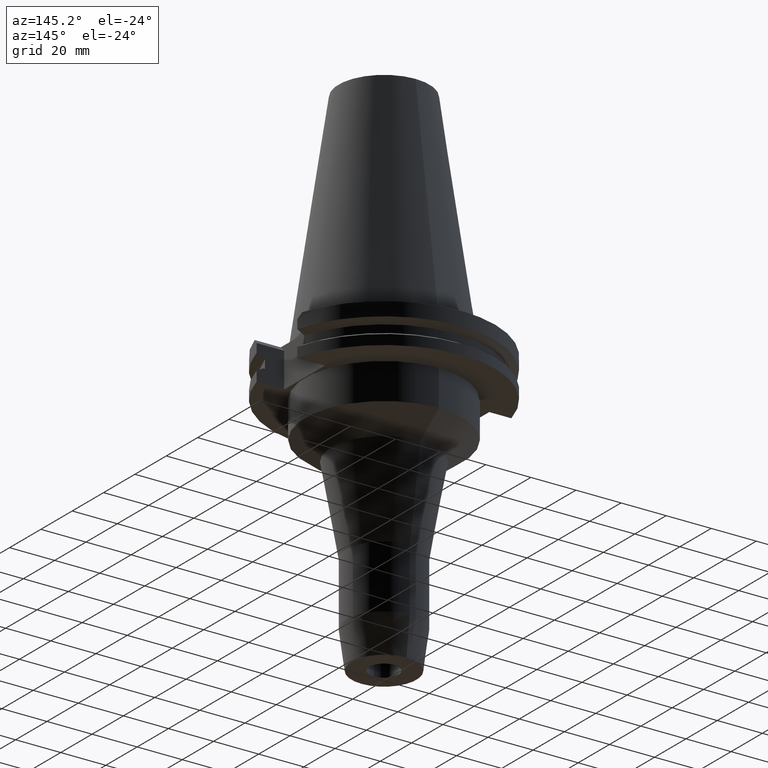
[diagram: clean part render]
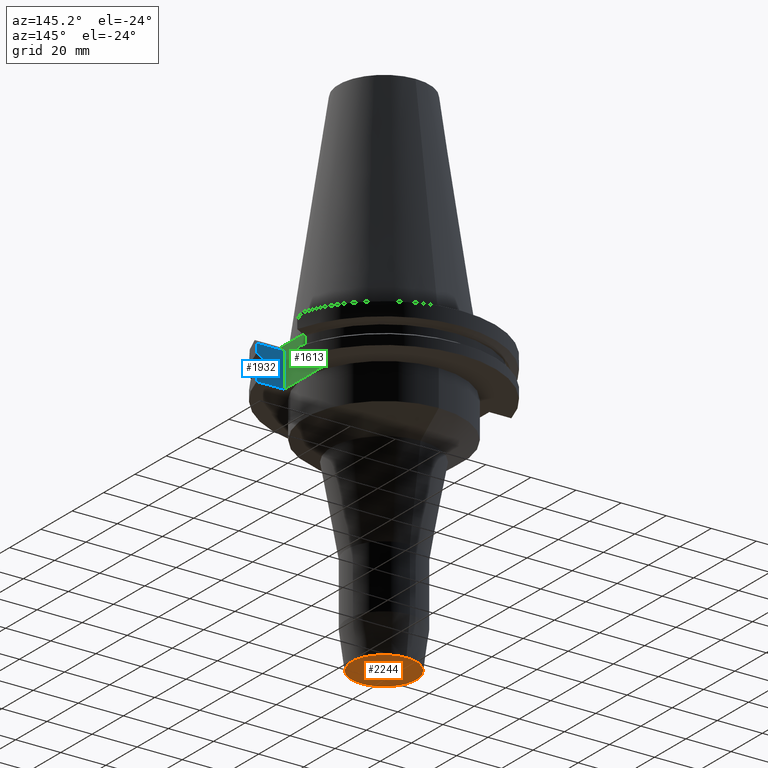
[diagram: same view with three faces highlighted in distinct colors, each labeled with its STEP entity id]
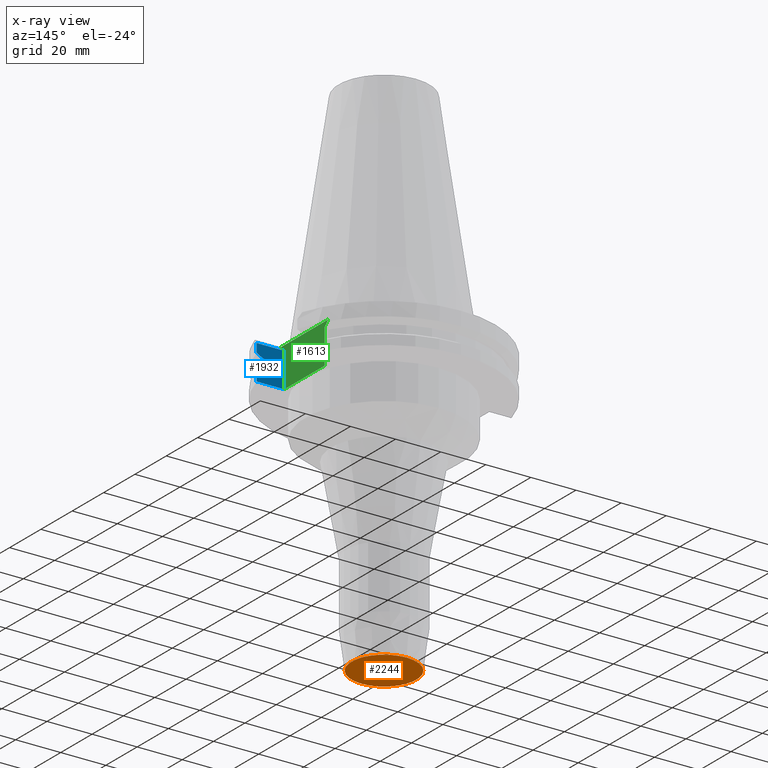
[diagram: x-ray of the same camera — body ghosted, the three highlighted faces saturated]
A machine part, auxiliary view with three faces highlighted in distinct colors.
The next image is the same camera in x-ray (body ghosted, the three faces saturated) — at least one of them is partly hidden behind the body in this view.
Their STEP definitions:

[orange] entity #2244 — the highlighted planar face has unit normal (0, 0, 1).
#950=CARTESIAN_POINT('',(0.E0,0.E0,-1.27E2));
#951=DIRECTION('',(0.E0,0.E0,1.E0));
#952=DIRECTION('',(0.E0,-1.E0,0.E0));
#953=AXIS2_PLACEMENT_3D('',#950,#951,#952);
#958=CARTESIAN_POINT('',(0.E0,0.E0,-1.27E2));
#959=DIRECTION('',(0.E0,0.E0,1.E0));
#960=DIRECTION('',(0.E0,1.E0,0.E0));
#961=AXIS2_PLACEMENT_3D('',#958,#959,#960);
#966=CARTESIAN_POINT('',(0.E0,0.E0,-1.27E2));
#967=DIRECTION('',(0.E0,0.E0,-1.E0));
#968=DIRECTION('',(0.E0,-1.E0,0.E0));
#969=AXIS2_PLACEMENT_3D('',#966,#967,#968);
#974=CARTESIAN_POINT('',(0.E0,0.E0,-1.27E2));
#975=DIRECTION('',(0.E0,0.E0,-1.E0));
#976=DIRECTION('',(0.E0,1.E0,0.E0));
#977=AXIS2_PLACEMENT_3D('',#974,#975,#976);
#1364=CARTESIAN_POINT('',(0.E0,1.43455E1,-1.27E2));
#1365=VERTEX_POINT('',#1364);
#1366=CARTESIAN_POINT('',(0.E0,-1.43455E1,-1.27E2));
#1367=VERTEX_POINT('',#1366);
#1368=CARTESIAN_POINT('',(0.E0,-6.35E0,-1.27E2));
#1369=CARTESIAN_POINT('',(0.E0,6.35E0,-1.27E2));
#1370=VERTEX_POINT('',#1368);
#1371=VERTEX_POINT('',#1369);
#2229=CARTESIAN_POINT('',(0.E0,0.E0,-1.27E2));
#2230=DIRECTION('',(0.E0,0.E0,1.E0));
#2231=DIRECTION('',(0.E0,1.E0,0.E0));
#2232=AXIS2_PLACEMENT_3D('',#2229,#2230,#2231);
#2233=PLANE('',#2232);
#2234=ORIENTED_EDGE('',*,*,#2222,.T.);
#2235=ORIENTED_EDGE('',*,*,#2211,.T.);
#2236=EDGE_LOOP('',(#2234,#2235));
#2237=FACE_OUTER_BOUND('',#2236,.F.);
#2239=ORIENTED_EDGE('',*,*,#2238,.T.);
#2241=ORIENTED_EDGE('',*,*,#2240,.T.);
#2242=EDGE_LOOP('',(#2239,#2241));
#2243=FACE_BOUND('',#2242,.F.);
#954=CIRCLE('',#953,1.43455E1);
#962=CIRCLE('',#961,1.43455E1);
#970=CIRCLE('',#969,6.35E0);
#978=CIRCLE('',#977,6.35E0);
#2211=EDGE_CURVE('',#1365,#1367,#962,.T.);
#2222=EDGE_CURVE('',#1367,#1365,#954,.T.);
#2238=EDGE_CURVE('',#1370,#1371,#970,.T.);
#2240=EDGE_CURVE('',#1371,#1370,#978,.T.);
#2244=ADVANCED_FACE('',(#2237,#2243),#2233,.F.);

[blue] entity #1932 — the highlighted planar face has unit normal (0, -1, 0).
#145=DIRECTION('',(0.E0,0.E0,1.E0));
#146=VECTOR('',#145,1.535E1);
#147=CARTESIAN_POINT('',(3.527E1,-1.2955E1,-1.905E1));
#148=LINE('',#147,#146);
#551=DIRECTION('',(2.258389479162E-13,-3.642563676067E-14,-1.E0));
#552=VECTOR('',#551,3.901333230925E0);
#553=CARTESIAN_POINT('',(4.747671146204E1,-1.2955E1,-3.7E0));
#554=LINE('',#553,#552);
#565=CARTESIAN_POINT('',(4.747671146204E1,-1.2955E1,-3.699999999999E0));
#573=DIRECTION('',(1.E0,-1.498886534897E-14,0.E0));
#574=VECTOR('',#573,1.220671146204E1);
#575=CARTESIAN_POINT('',(3.527E1,-1.2955E1,-1.905E1));
#576=LINE('',#575,#574);
#580=DIRECTION('',(1.E0,2.951119133495E-13,-1.037231577802E-12));
#581=VECTOR('',#580,8.186200530384E-1);
#582=CARTESIAN_POINT('',(4.376795631509E1,-1.2955E1,-9.2075E0));
#583=LINE('',#582,#581);
#587=DIRECTION('',(-1.E0,1.498886534897E-14,0.E0));
#588=VECTOR('',#587,1.220671146204E1);
#589=CARTESIAN_POINT('',(4.747671146204E1,-1.2955E1,-3.7E0));
#590=LINE('',#589,#588);
#594=DIRECTION('',(-1.244486888954E-13,4.848650216703E-14,-1.E0));
#595=VECTOR('',#594,4.396333230921E0);
#596=CARTESIAN_POINT('',(4.747671146204E1,-1.2955E1,-1.465366676908E1));
#597=LINE('',#596,#595);
#622=CARTESIAN_POINT('',(4.747671146204E1,-1.2955E1,-7.601333230925E0));
#623=CARTESIAN_POINT('',(4.715593427836E1,-1.2955E1,-7.780001752709E0));
#624=CARTESIAN_POINT('',(4.651414584904E1,-1.2955E1,-8.137199213223E0));
#625=CARTESIAN_POINT('',(4.555077636708E1,-1.2955E1,-8.672605903583E0));
#626=CARTESIAN_POINT('',(4.490806163991E1,-1.2955E1,-9.029261766988E0));
#627=CARTESIAN_POINT('',(4.458657636813E1,-1.2955E1,-9.207500000001E0));
#697=DIRECTION('',(-1.110223024625E-14,0.E0,-1.E0));
#698=VECTOR('',#697,3.84E0);
#699=CARTESIAN_POINT('',(4.376795631509E1,-1.2955E1,-9.2075E0));
#700=LINE('',#699,#698);
#711=DIRECTION('',(1.E0,3.884193565410E-13,4.274782862491E-13));
#712=VECTOR('',#711,8.186200530381E-1);
#713=CARTESIAN_POINT('',(4.376795631509E1,-1.2955E1,-1.30475E1));
#714=LINE('',#713,#712);
#750=CARTESIAN_POINT('',(4.458657636813E1,-1.2955E1,-1.30475E1));
#751=CARTESIAN_POINT('',(4.490806163993E1,-1.2955E1,-1.322573823302E1));
#752=CARTESIAN_POINT('',(4.555077636711E1,-1.2955E1,-1.358239409644E1));
#753=CARTESIAN_POINT('',(4.651414584908E1,-1.2955E1,-1.411780078680E1));
#754=CARTESIAN_POINT('',(4.715593427837E1,-1.2955E1,-1.447499824730E1));
#755=CARTESIAN_POINT('',(4.747671146204E1,-1.2955E1,-1.465366676908E1));
#1321=CARTESIAN_POINT('',(3.527E1,-1.2955E1,-1.905E1));
#1323=VERTEX_POINT('',#1321);
#1324=CARTESIAN_POINT('',(3.527E1,-1.2955E1,-3.7E0));
#1325=VERTEX_POINT('',#1324);
#1341=CARTESIAN_POINT('',(4.747671146204E1,-1.2955E1,-1.905E1));
#1343=VERTEX_POINT('',#1341);
#1432=VERTEX_POINT('',#565);
#1433=CARTESIAN_POINT('',(4.747671146204E1,-1.2955E1,-7.601333230925E0));
#1434=VERTEX_POINT('',#1433);
#1446=CARTESIAN_POINT('',(4.747671146204E1,-1.2955E1,-1.465366676908E1));
#1447=VERTEX_POINT('',#1446);
#1448=VERTEX_POINT('',#750);
#1449=CARTESIAN_POINT('',(4.376795631509E1,-1.2955E1,-1.30475E1));
#1450=VERTEX_POINT('',#1449);
#1451=CARTESIAN_POINT('',(4.376795631509E1,-1.2955E1,-9.2075E0));
#1452=VERTEX_POINT('',#1451);
#1453=CARTESIAN_POINT('',(4.458657636813E1,-1.2955E1,-9.207500000001E0));
#1454=VERTEX_POINT('',#1453);
#1909=CARTESIAN_POINT('',(3.527E1,-1.2955E1,-3.7E0));
#1910=DIRECTION('',(0.E0,-1.E0,0.E0));
#1911=DIRECTION('',(0.E0,0.E0,-1.E0));
#1912=AXIS2_PLACEMENT_3D('',#1909,#1910,#1911);
#1913=PLANE('',#1912);
#1914=ORIENTED_EDGE('',*,*,#1636,.T.);
#1916=ORIENTED_EDGE('',*,*,#1915,.F.);
#1918=ORIENTED_EDGE('',*,*,#1917,.F.);
#1920=ORIENTED_EDGE('',*,*,#1919,.F.);
#1922=ORIENTED_EDGE('',*,*,#1921,.F.);
#1924=ORIENTED_EDGE('',*,*,#1923,.T.);
#1926=ORIENTED_EDGE('',*,*,#1925,.F.);
#1927=ORIENTED_EDGE('',*,*,#1882,.F.);
#1928=ORIENTED_EDGE('',*,*,#1904,.T.);
#1929=ORIENTED_EDGE('',*,*,#1602,.F.);
#1930=EDGE_LOOP('',(#1914,#1916,#1918,#1920,#1922,#1924,#1926,#1927,#1928,
#1929));
#1931=FACE_OUTER_BOUND('',#1930,.F.);
#628=B_SPLINE_CURVE_WITH_KNOTS('',3,(#622,#623,#624,#625,#626,#627),
.UNSPECIFIED.,.F.,.F.,(4,1,1,4),(0.E0,3.333333333333E-1,6.666666666667E-1,1.E0),
.UNSPECIFIED.);
#756=B_SPLINE_CURVE_WITH_KNOTS('',3,(#750,#751,#752,#753,#754,#755),
.UNSPECIFIED.,.F.,.F.,(4,1,1,4),(0.E0,3.333333333333E-1,6.666666666667E-1,1.E0),
.UNSPECIFIED.);
#1602=EDGE_CURVE('',#1323,#1325,#148,.T.);
#1636=EDGE_CURVE('',#1323,#1343,#576,.T.);
#1882=EDGE_CURVE('',#1432,#1434,#554,.T.);
#1904=EDGE_CURVE('',#1432,#1325,#590,.T.);
#1915=EDGE_CURVE('',#1447,#1343,#597,.T.);
#1917=EDGE_CURVE('',#1448,#1447,#756,.T.);
#1919=EDGE_CURVE('',#1450,#1448,#714,.T.);
#1921=EDGE_CURVE('',#1452,#1450,#700,.T.);
#1923=EDGE_CURVE('',#1452,#1454,#583,.T.);
#1925=EDGE_CURVE('',#1434,#1454,#628,.T.);
#1932=ADVANCED_FACE('',(#1931),#1913,.F.);

[green] entity #1613 — the highlighted planar face has unit normal (1, 0, 0).
#62=DIRECTION('',(0.E0,-1.E0,0.E0));
#63=VECTOR('',#62,3.031E1);
#64=CARTESIAN_POINT('',(3.527E1,1.5155E1,-1.5E0));
#65=LINE('',#64,#63);
#138=DIRECTION('',(0.E0,-1.E0,0.E0));
#139=VECTOR('',#138,2.591E1);
#140=CARTESIAN_POINT('',(3.527E1,1.2955E1,-1.905E1));
#141=LINE('',#140,#139);
#145=DIRECTION('',(0.E0,0.E0,1.E0));
#146=VECTOR('',#145,1.535E1);
#147=CARTESIAN_POINT('',(3.527E1,-1.2955E1,-1.905E1));
#148=LINE('',#147,#146);
#152=DIRECTION('',(0.E0,-7.071067811865E-1,7.071067811865E-1));
#153=VECTOR('',#152,3.111269837221E0);
#154=CARTESIAN_POINT('',(3.527E1,-1.2955E1,-3.7E0));
#155=LINE('',#154,#153);
#159=DIRECTION('',(0.E0,-7.071067811865E-1,-7.071067811865E-1));
#160=VECTOR('',#159,3.111269837221E0);
#161=CARTESIAN_POINT('',(3.527E1,1.5155E1,-1.5E0));
#162=LINE('',#161,#160);
#166=DIRECTION('',(0.E0,0.E0,-1.E0));
#167=VECTOR('',#166,1.535E1);
#168=CARTESIAN_POINT('',(3.527E1,1.2955E1,-3.7E0));
#169=LINE('',#168,#167);
#1300=CARTESIAN_POINT('',(3.527E1,1.5155E1,-1.5E0));
#1301=CARTESIAN_POINT('',(3.527E1,-1.5155E1,-1.5E0));
#1302=VERTEX_POINT('',#1300);
#1303=VERTEX_POINT('',#1301);
#1320=CARTESIAN_POINT('',(3.527E1,1.2955E1,-1.905E1));
#1321=CARTESIAN_POINT('',(3.527E1,-1.2955E1,-1.905E1));
#1322=VERTEX_POINT('',#1320);
#1323=VERTEX_POINT('',#1321);
#1324=CARTESIAN_POINT('',(3.527E1,-1.2955E1,-3.7E0));
#1325=VERTEX_POINT('',#1324);
#1326=CARTESIAN_POINT('',(3.527E1,1.2955E1,-3.7E0));
#1327=VERTEX_POINT('',#1326);
#1595=CARTESIAN_POINT('',(3.527E1,0.E0,0.E0));
#1596=DIRECTION('',(1.E0,0.E0,0.E0));
#1597=DIRECTION('',(0.E0,0.E0,-1.E0));
#1598=AXIS2_PLACEMENT_3D('',#1595,#1596,#1597);
#1599=PLANE('',#1598);
#1601=ORIENTED_EDGE('',*,*,#1600,.T.);
#1603=ORIENTED_EDGE('',*,*,#1602,.T.);
#1605=ORIENTED_EDGE('',*,*,#1604,.T.);
#1606=ORIENTED_EDGE('',*,*,#1568,.F.);
#1608=ORIENTED_EDGE('',*,*,#1607,.T.);
#1610=ORIENTED_EDGE('',*,*,#1609,.T.);
#1611=EDGE_LOOP('',(#1601,#1603,#1605,#1606,#1608,#1610));
#1612=FACE_OUTER_BOUND('',#1611,.F.);
#1568=EDGE_CURVE('',#1302,#1303,#65,.T.);
#1600=EDGE_CURVE('',#1322,#1323,#141,.T.);
#1602=EDGE_CURVE('',#1323,#1325,#148,.T.);
#1604=EDGE_CURVE('',#1325,#1303,#155,.T.);
#1607=EDGE_CURVE('',#1302,#1327,#162,.T.);
#1609=EDGE_CURVE('',#1327,#1322,#169,.T.);
#1613=ADVANCED_FACE('',(#1612),#1599,.T.);